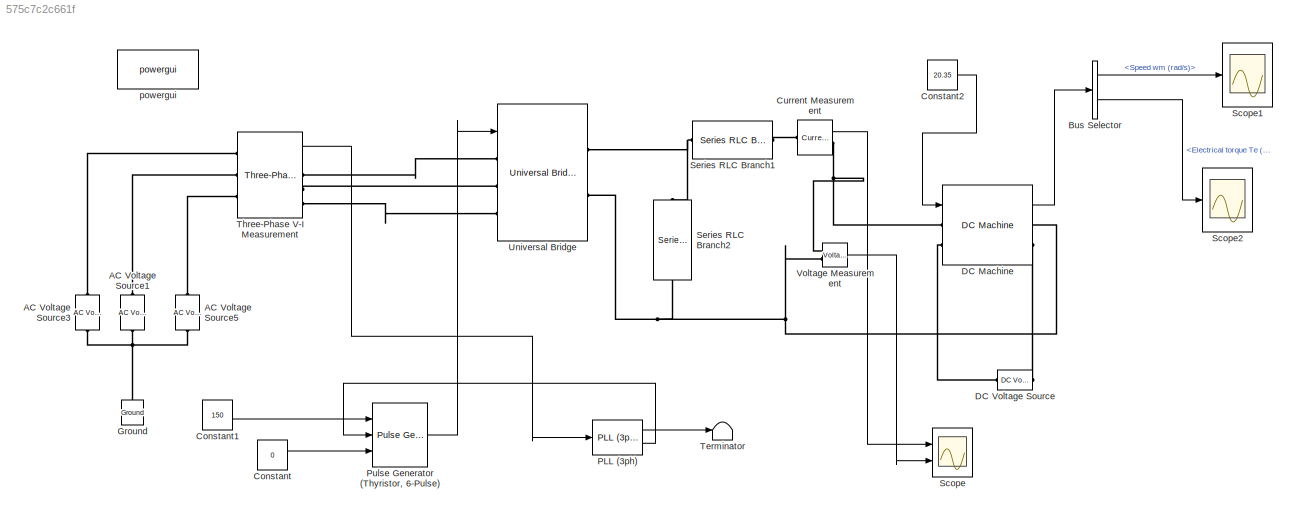
MODEL slx_575c7c2c661f
KIND model
CONFIG AbsTol = auto
CONFIG EnableMultiTasking = off
CONFIG FixedStep = auto
CONFIG MaxStep = 0.0055632823365785811
CONFIG MinStep = auto
CONFIG RelTol = 1e-3
CONFIG SampleTimeConstraint = Unconstrained
CONFIG SolverName = ode23t
CONFIG StartTime = 0.0
CONFIG StopTime = 4
BLOCK [Reference] AC Voltage Source1  REF=spsACVoltageSourceLib/AC Voltage Source
  Ports = [0, 0, 0, 0, 0, 1, 1]
  SourceBlock = spsACVoltageSourceLib/AC Voltage Source
  SourceProductBaseCode = PS
  SourceType = AC Voltage Source
BLOCK [Reference] AC Voltage Source3  REF=spsACVoltageSourceLib/AC Voltage Source
  Ports = [0, 0, 0, 0, 0, 1, 1]
  SourceBlock = spsACVoltageSourceLib/AC Voltage Source
  SourceProductBaseCode = PS
  SourceType = AC Voltage Source
BLOCK [Reference] AC Voltage Source5  REF=spsACVoltageSourceLib/AC Voltage Source
  Ports = [0, 0, 0, 0, 0, 1, 1]
  SourceBlock = spsACVoltageSourceLib/AC Voltage Source
  SourceProductBaseCode = PS
  SourceType = AC Voltage Source
BLOCK [BusSelector] Bus Selector
  OutputSignals = Speed wm (rad/s),Electrical torque Te (n m)
  Ports = [1, 2]
BLOCK [Constant] Constant
  Value = 0
BLOCK [Constant] Constant1
  Value = 150
BLOCK [Constant] Constant2
  Value = 20.35
BLOCK [Reference] Current Measurement  REF=spsCurrentMeasurementLib/Current Measurement
  Ports = [0, 1, 0, 0, 0, 1, 1]
  SourceBlock = spsCurrentMeasurementLib/Current Measurement
  SourceProductBaseCode = PS
  SourceType = Current Measurement
  UserDataPersistent = on
BLOCK [Reference] DC Machine  REF=spsDCMachineLib/DC Machine
  Ports = [1, 1, 0, 0, 0, 2, 2]
  SourceBlock = spsDCMachineLib/DC Machine
  SourceProductBaseCode = PS
  SourceType = DC machine
BLOCK [Reference] DC Voltage Source  REF=spsDCVoltageSourceLib/DC Voltage Source
  NameLocation = right
  Ports = [0, 0, 0, 0, 0, 1, 1]
  SourceBlock = spsDCVoltageSourceLib/DC Voltage Source
  SourceProductBaseCode = PS
  SourceType = DC Voltage Source
BLOCK [Reference] Ground  REF=spsGroundLib/Ground
  NameLocation = right
  Ports = [0, 0, 0, 0, 0, 1]
  SourceBlock = spsGroundLib/Ground
  SourceProductBaseCode = PS
  SourceType = Ground
BLOCK [Reference] PLL (3ph)  REF=spsPLL3phLib/PLL
(3ph)
  Ports = [1, 2]
  SourceBlock = spsPLL3phLib/PLL\n(3ph)
  SourceProductBaseCode = PS
  SourceType = PLL (3ph)
BLOCK [Reference] Pulse Generator (Thyristor, 6-Pulse)  REF=spsPulseGeneratorThyristor6PulseLib/Pulse Generator
(Thyristor, 6-Pulse)
  Ports = [3, 1]
  SourceBlock = spsPulseGeneratorThyristor6PulseLib/Pulse Generator\n(Thyristor, 6-Pulse)
  SourceProductBaseCode = PS
  SourceType = Pulse Generator (Thyristor)
BLOCK [Scope] Scope
  Floating = off
  NumInputPorts = 2
  Ports = [2]
  ScopeSpecificationString = Simulink.scopes.TimeScopeBlockCfg('CurrentConfiguration', extmgr.ConfigurationSet(extmgr.Configuration('Core','General UI',true),extmgr.Configuration('Core','Source UI',true),extmgr.Configuration('Sources','WiredSimulink',true),extmgr.Configuration('Visuals','Time Domain',true,'SerializedDisplays',{struct('MinYLimReal','-28.4623','MaxYLimReal','241.40884','YLabelReal','','MinYLimMag','0.00000','Ma...<+1442ch>
BLOCK [Scope] Scope1
  Floating = off
  NumInputPorts = 1
  Ports = [1]
  ScopeSpecificationString = Simulink.scopes.TimeScopeBlockCfg('CurrentConfiguration', extmgr.ConfigurationSet(extmgr.Configuration('Core','General UI',true,'FigureColor',[1 1 1]),extmgr.Configuration('Core','Source UI',true),extmgr.Configuration('Sources','WiredSimulink',true,'DataLoggingVariableName','ScopeData1'),extmgr.Configuration('Visuals','Time Domain',true,'SerializedDisplays',{struct('MinYLimReal','-63.14631','MaxYL...<+2209ch>
BLOCK [Scope] Scope2
  Floating = off
  NumInputPorts = 1
  Ports = [1]
  ScopeSpecificationString = Simulink.scopes.TimeScopeBlockCfg('CurrentConfiguration', extmgr.ConfigurationSet(extmgr.Configuration('Core','General UI',true,'FigureColor',[1 1 1]),extmgr.Configuration('Core','Source UI',true),extmgr.Configuration('Sources','WiredSimulink',true,'DataLoggingVariableName','ScopeData1'),extmgr.Configuration('Visuals','Time Domain',true,'SerializedDisplays',{struct('MinYLimReal','-63.14631','MaxYL...<+1615ch>
BLOCK [Reference] Series RLC Branch1  REF=spsSeriesRLCBranchLib/Series RLC Branch
  Ports = [0, 0, 0, 0, 0, 1, 1]
  SourceBlock = spsSeriesRLCBranchLib/Series RLC Branch
  SourceProductBaseCode = PS
  SourceType = Series RLC Branch
BLOCK [Reference] Series RLC Branch2  REF=spsSeriesRLCBranchLib/Series RLC Branch
  NameLocation = left
  Ports = [0, 0, 0, 0, 0, 1, 1]
  SourceBlock = spsSeriesRLCBranchLib/Series RLC Branch
  SourceProductBaseCode = PS
  SourceType = Series RLC Branch
BLOCK [Terminator] Terminator
BLOCK [Reference] Three-Phase V-I Measurement  REF=spsThreePhaseVIMeasurementLib/Three-Phase
V-I Measurement
  Ports = [0, 2, 0, 0, 0, 3, 3]
  SourceBlock = spsThreePhaseVIMeasurementLib/Three-Phase\nV-I Measurement
  SourceProductBaseCode = PS
  SourceType = Three-Phase VI Measurement
BLOCK [Reference] Universal Bridge  REF=spsUniversalBridgeLib/Universal Bridge
  Ports = [1, 0, 0, 0, 0, 3, 2]
  SourceBlock = spsUniversalBridgeLib/Universal Bridge
  SourceProductBaseCode = PS
  SourceType = Universal Bridge
BLOCK [Reference] Voltage Measurement  REF=spsVoltageMeasurementLib/Voltage Measurement
  Ports = [0, 1, 0, 0, 0, 2]
  SourceBlock = spsVoltageMeasurementLib/Voltage Measurement
  SourceProductBaseCode = PS
  SourceType = Voltage Measurement
  UserDataPersistent = on
BLOCK [Reference] powergui  REF=spspowerguiLib/powergui
  Ports = []
  Priority = 1
  SourceBlock = spspowerguiLib/powergui
  SourceProductBaseCode = PS
  SourceType = PSB option menu block
LINE Bus Selector:1 -> Scope1:1
LINE Bus Selector:2 -> Scope2:1
LINE Constant1:1 -> Pulse Generator (Thyristor, 6-Pulse):1
LINE Constant2:1 -> DC Machine:1
LINE Constant:1 -> Pulse Generator (Thyristor, 6-Pulse):3
LINE Current Measurement:1 -> Scope:1
LINE DC Machine:1 -> Bus Selector:1
LINE PLL (3ph):1 -> Terminator:1
LINE PLL (3ph):2 -> Pulse Generator (Thyristor, 6-Pulse):2
LINE Pulse Generator (Thyristor, 6-Pulse):1 -> Universal Bridge:1
LINE Three-Phase V-I Measurement:1 -> PLL (3ph):1
LINE Voltage Measurement:1 -> Scope:2
PNET net1: AC Voltage Source1:LConn1 -- AC Voltage Source3:LConn1 -- AC Voltage Source5:LConn1 -- Ground:LConn1
PLINE AC Voltage Source1:RConn1 -- Three-Phase V-I Measurement:LConn2
PLINE AC Voltage Source3:RConn1 -- Three-Phase V-I Measurement:LConn1
PLINE AC Voltage Source5:RConn1 -- Three-Phase V-I Measurement:LConn3
PLINE Current Measurement:LConn1 -- Series RLC Branch1:RConn1
PNET net2: Current Measurement:RConn1 -- DC Machine:LConn1 -- Voltage Measurement:LConn1
PLINE DC Machine:LConn2 -- DC Voltage Source:RConn1
PNET net3: DC Machine:RConn1 -- Series RLC Branch2:RConn1 -- Universal Bridge:RConn2 -- Voltage Measurement:LConn2
PLINE DC Machine:RConn2 -- DC Voltage Source:LConn1
PNET net4: Series RLC Branch1:LConn1 -- Series RLC Branch2:LConn1 -- Universal Bridge:RConn1
PLINE Three-Phase V-I Measurement:RConn1 -- Universal Bridge:LConn1
PLINE Three-Phase V-I Measurement:RConn2 -- Universal Bridge:LConn2
PLINE Three-Phase V-I Measurement:RConn3 -- Universal Bridge:LConn3
note: PNET lines group multi-terminal physical nets as a canonical sorted terminal list (undirected conserving connections); 2-terminal nets keep the pairwise PLINE form
